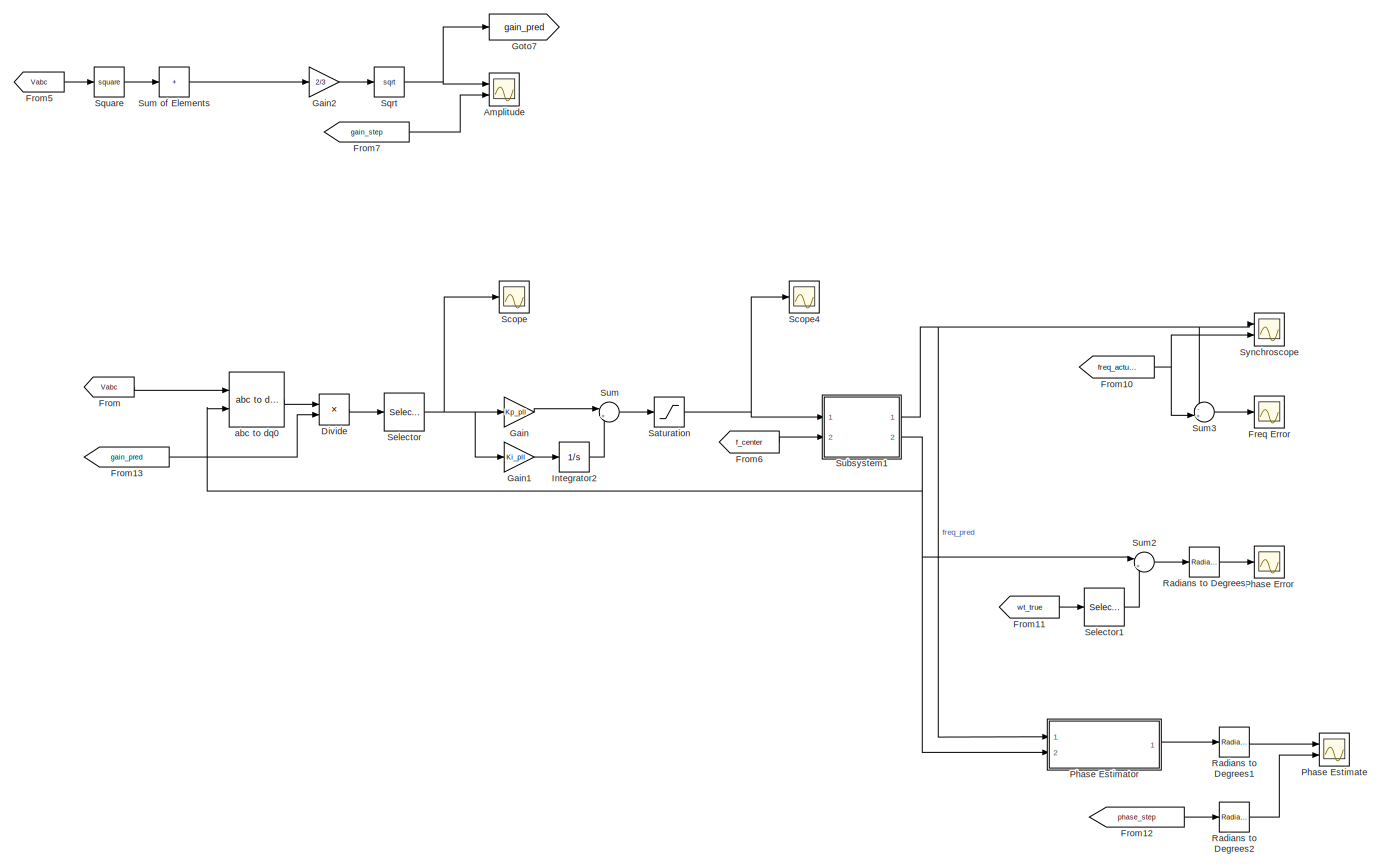
[diagram: root canvas - part 1/2, right side, full height]
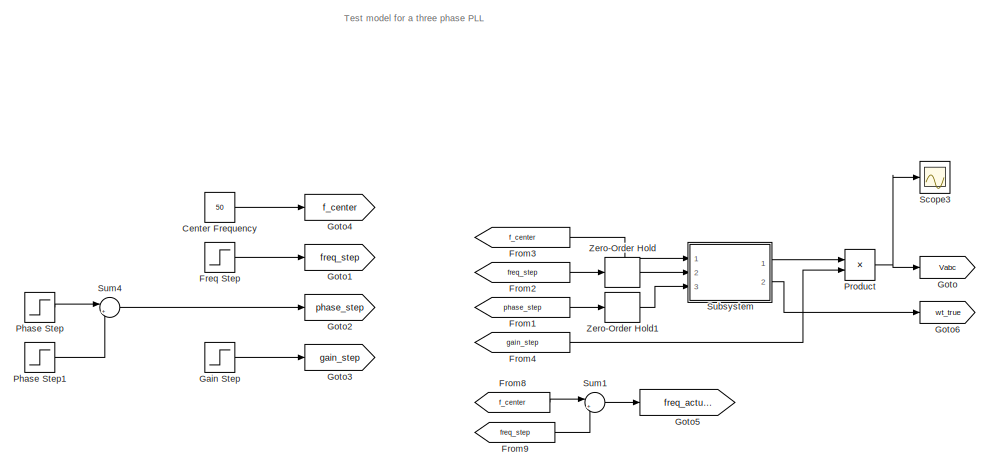
[diagram: root canvas - part 2/2, middle left region]
MODEL slx_16de84b69c4b
KIND model
CONFIG AbsTol = auto
CONFIG EnableMultiTasking = off
CONFIG FixedStep = auto
CONFIG MaxStep = auto
CONFIG MinStep = auto
CONFIG RelTol = 1e-3
CONFIG SampleTimeConstraint = Unconstrained
CONFIG SolverName = VariableStepAuto
CONFIG StartTime = 0.0
CONFIG StopTime = 5
BLOCK [Scope] Amplitude
  Floating = off
  NumInputPorts = 2
  Ports = [2]
  ScopeSpecificationString = Simulink.scopes.TimeScopeBlockCfg('CurrentConfiguration', extmgr.ConfigurationSet(extmgr.Configuration('Core','General UI',true),extmgr.Configuration('Core','Source UI',true),extmgr.Configuration('Sources','WiredSimulink',true,'DataLoggingVariableName','ScopeData5'),extmgr.Configuration('Visuals','Time Domain',true,'SerializedDisplays',{struct('MinYLimReal','-42.42641','MaxYLimReal','381.83766','Y...<+1456ch>
BLOCK [Constant] Center Frequency
  Value = 50
BLOCK [Product] Divide
  Inputs = */
  NameLocation = top
  Ports = [2, 1]
BLOCK [Scope] Freq Error
  Floating = off
  NumInputPorts = 1
  Ports = [1]
  ScopeSpecificationString = Simulink.scopes.TimeScopeBlockCfg('CurrentConfiguration', extmgr.ConfigurationSet(extmgr.Configuration('Core','General UI',true),extmgr.Configuration('Core','Source UI',true),extmgr.Configuration('Sources','WiredSimulink',true,'DataLoggingVariableName','ScopeData6'),extmgr.Configuration('Visuals','Time Domain',true,'SerializedDisplays',{struct('MinYLimReal','-8.18375','MaxYLimReal','3.65372','YLab...<+1721ch>
BLOCK [Step] Freq Step
  After = -2
  SampleTime = 0
BLOCK [From] From
  GotoTag = Vabc
BLOCK [From] From1
  GotoTag = phase_step
BLOCK [From] From10
  GotoTag = freq_actual
BLOCK [From] From11
  GotoTag = wt_true
BLOCK [From] From12
  GotoTag = phase_step
BLOCK [From] From13
  GotoTag = gain_pred
BLOCK [From] From2
  GotoTag = freq_step
BLOCK [From] From3
  GotoTag = f_center
BLOCK [From] From4
  GotoTag = gain_step
BLOCK [From] From5
  GotoTag = Vabc
BLOCK [From] From6
  GotoTag = f_center
BLOCK [From] From7
  GotoTag = gain_step
BLOCK [From] From8
  GotoTag = f_center
BLOCK [From] From9
  GotoTag = freq_step
BLOCK [Gain] Gain
  Gain = Kp_pll
BLOCK [Step] Gain Step
  After = 400*sqrt(2)*0.2
  Before = 400*sqrt(2)
  SampleTime = 1/10000
  Time = 3
BLOCK [Gain] Gain1
  Gain = Ki_pll
BLOCK [Gain] Gain2
  Gain = 2/3
BLOCK [Goto] Goto
  GotoTag = Vabc
BLOCK [Goto] Goto1
  GotoTag = freq_step
BLOCK [Goto] Goto2
  GotoTag = phase_step
BLOCK [Goto] Goto3
  GotoTag = gain_step
BLOCK [Goto] Goto4
  GotoTag = f_center
BLOCK [Goto] Goto5
  GotoTag = freq_actual
BLOCK [Goto] Goto6
  GotoTag = wt_true
BLOCK [Goto] Goto7
  GotoTag = gain_pred
BLOCK [Integrator] Integrator2
  LimitOutput = on
  LowerSaturationLimit = -2*pi*10
  Ports = [1, 1]
  UpperSaturationLimit = 2*pi*10
BLOCK [Scope] Phase Error
  Floating = off
  NumInputPorts = 1
  Ports = [1]
  ScopeSpecificationString = Simulink.scopes.TimeScopeBlockCfg('CurrentConfiguration', extmgr.ConfigurationSet(extmgr.Configuration('Core','General UI',true),extmgr.Configuration('Core','Source UI',true),extmgr.Configuration('Sources','WiredSimulink',true,'DataLoggingVariableName','ScopeData2'),extmgr.Configuration('Visuals','Time Domain',true,'SerializedDisplays',{struct('MinYLimReal','-20.00000','MaxYLimReal','30.00000','YL...<+1762ch>
BLOCK [Scope] Phase Estimate
  Floating = off
  NumInputPorts = 2
  Ports = [2]
  ScopeSpecificationString = Simulink.scopes.TimeScopeBlockCfg('CurrentConfiguration', extmgr.ConfigurationSet(extmgr.Configuration('Core','General UI',true),extmgr.Configuration('Core','Source UI',true),extmgr.Configuration('Sources','WiredSimulink',true,'DataLoggingVariableName','ScopeData1'),extmgr.Configuration('Visuals','Time Domain',true,'SerializedDisplays',{struct('MinYLimReal','-224.57527','MaxYLimReal','224.7466','Y...<+1481ch>
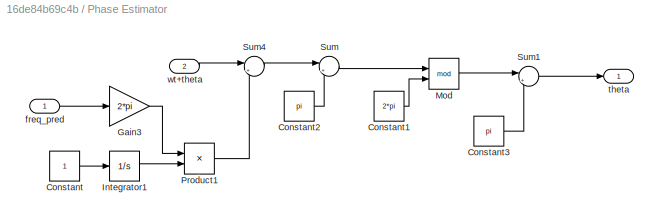
BLOCK [SubSystem] Phase Estimator
  Ports = [2, 1]
  RequestExecContextInheritance = off
BLOCK [Constant] Phase Estimator/Constant
BLOCK [Constant] Phase Estimator/Constant1
  Value = 2*pi
BLOCK [Constant] Phase Estimator/Constant2
  Value = pi
BLOCK [Constant] Phase Estimator/Constant3
  Value = pi
BLOCK [Gain] Phase Estimator/Gain3
  Gain = 2*pi
BLOCK [Integrator] Phase Estimator/Integrator1
  Ports = [1, 1]
BLOCK [Math] Phase Estimator/Mod
  Operator = mod
  Ports = [2, 1]
BLOCK [Product] Phase Estimator/Product1
  Ports = [2, 1]
BLOCK [Sum] Phase Estimator/Sum
  Inputs = |++
  Ports = [2, 1]
BLOCK [Sum] Phase Estimator/Sum1
  Inputs = |+-
  Ports = [2, 1]
BLOCK [Sum] Phase Estimator/Sum4
  Inputs = |+-
  Ports = [2, 1]
BLOCK [Inport] Phase Estimator/freq_pred
BLOCK [Outport] Phase Estimator/theta
BLOCK [Inport] Phase Estimator/wt+theta
  Port = 2
BLOCK [Step] Phase Step
  After = 15 * pi/180
  SampleTime = 0
  Time = 2
BLOCK [Step] Phase Step1
  After = -25 * pi/180
  SampleTime = 0
  Time = 4
BLOCK [Product] Product
  Ports = [2, 1]
BLOCK [Reference] Radians to Degrees  REF=simulink_extras/Transformations/Radians
to Degrees
  Ports = [1, 1]
  SourceBlock = simulink_extras/Transformations/Radians\nto Degrees
  SourceProductBaseCode = SL
  SourceType = RadiansToDegrees
BLOCK [Reference] Radians to Degrees1  REF=simulink_extras/Transformations/Radians
to Degrees
  Ports = [1, 1]
  SourceBlock = simulink_extras/Transformations/Radians\nto Degrees
  SourceProductBaseCode = SL
  SourceType = RadiansToDegrees
BLOCK [Reference] Radians to Degrees2  REF=simulink_extras/Transformations/Radians
to Degrees
  Ports = [1, 1]
  SourceBlock = simulink_extras/Transformations/Radians\nto Degrees
  SourceProductBaseCode = SL
  SourceType = RadiansToDegrees
BLOCK [Saturate] Saturation
  LowerLimit = -2*pi*5
  UpperLimit = 2*pi*5
BLOCK [Scope] Scope
  Floating = off
  NumInputPorts = 1
  Ports = [1]
  ScopeSpecificationString = Simulink.scopes.TimeScopeBlockCfg('CurrentConfiguration', extmgr.ConfigurationSet(extmgr.Configuration('Core','General UI',true),extmgr.Configuration('Core','Source UI',true),extmgr.Configuration('Sources','WiredSimulink',true),extmgr.Configuration('Visuals','Time Domain',true,'SerializedDisplays',{struct('MinYLimReal','-0.5078','MaxYLimReal','0.344','YLabelReal','','MinYLimMag','0.00000','MaxYLim...<+1391ch>
BLOCK [Scope] Scope3
  Floating = off
  NumInputPorts = 1
  Ports = [1]
  ScopeSpecificationString = Simulink.scopes.TimeScopeBlockCfg('CurrentConfiguration', extmgr.ConfigurationSet(extmgr.Configuration('Core','General UI',true),extmgr.Configuration('Core','Source UI',true),extmgr.Configuration('Sources','WiredSimulink',true,'DataLoggingVariableName','ScopeData3'),extmgr.Configuration('Visuals','Time Domain',true,'SerializedDisplays',{struct('MinYLimReal','-397.22471','MaxYLimReal','408.88214','...<+1477ch>
BLOCK [Scope] Scope4
  Floating = off
  NumInputPorts = 1
  Ports = [1]
  ScopeSpecificationString = Simulink.scopes.TimeScopeBlockCfg('CurrentConfiguration', extmgr.ConfigurationSet(extmgr.Configuration('Core','General UI',true),extmgr.Configuration('Core','Source UI',true),extmgr.Configuration('Sources','WiredSimulink',true,'DataLoggingVariableName','ScopeData4'),extmgr.Configuration('Visuals','Time Domain',true,'SerializedDisplays',{struct('MinYLimReal','-39.63487','MaxYLimReal','74.21704','YL...<+1419ch>
BLOCK [Selector] Selector
  IndexOptions = Index vector (dialog)
  Indices = [2]
  InputPortWidth = 3
  OutputSizes = 1
  Ports = [1, 1]
BLOCK [Selector] Selector1
  IndexOptions = Index vector (dialog)
  Indices = [1]
  InputPortWidth = 3
  OutputSizes = 1
  Ports = [1, 1]
BLOCK [Sqrt] Sqrt
BLOCK [Math] Square
  Operator = square
  Ports = [1, 1]
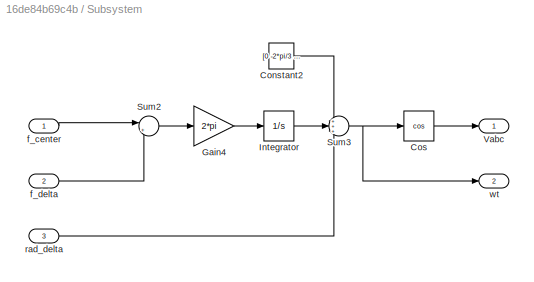
BLOCK [SubSystem] Subsystem
  Ports = [3, 2]
  RequestExecContextInheritance = off
BLOCK [Constant] Subsystem/Constant2
  Value = [0 -2*pi/3 2*pi/3]
BLOCK [Trigonometry] Subsystem/Cos
  Operator = cos
  Ports = [1, 1]
BLOCK [Gain] Subsystem/Gain4
  Gain = 2*pi
BLOCK [Integrator] Subsystem/Integrator
  Ports = [1, 1]
BLOCK [Sum] Subsystem/Sum2
  Inputs = |++
  Ports = [2, 1]
BLOCK [Sum] Subsystem/Sum3
  Inputs = +++
  Ports = [3, 1]
BLOCK [Outport] Subsystem/Vabc
BLOCK [Inport] Subsystem/f_center
BLOCK [Inport] Subsystem/f_delta
  Port = 2
BLOCK [Inport] Subsystem/rad_delta
  Port = 3
BLOCK [Outport] Subsystem/wt
  Port = 2
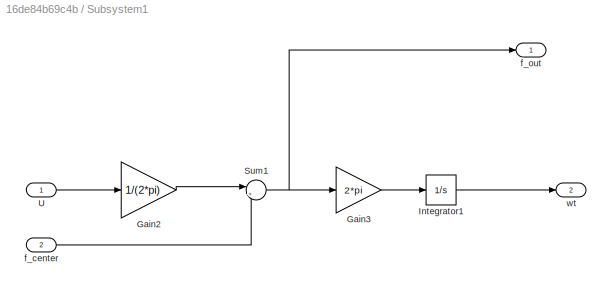
BLOCK [SubSystem] Subsystem1
  Ports = [2, 2]
  RequestExecContextInheritance = off
BLOCK [Gain] Subsystem1/Gain2
  Gain = 1/(2*pi)
BLOCK [Gain] Subsystem1/Gain3
  Gain = 2*pi
BLOCK [Integrator] Subsystem1/Integrator1
  Ports = [1, 1]
BLOCK [Sum] Subsystem1/Sum1
  Inputs = |++
  Ports = [2, 1]
BLOCK [Inport] Subsystem1/U
BLOCK [Inport] Subsystem1/f_center
  Port = 2
BLOCK [Outport] Subsystem1/f_out
BLOCK [Outport] Subsystem1/wt
  Port = 2
BLOCK [Sum] Sum
  Inputs = |++
  Ports = [2, 1]
BLOCK [Sum] Sum of Elements
  IconShape = rectangular
  Inputs = +
  Ports = [1, 1]
BLOCK [Sum] Sum1
  Inputs = |++
  Ports = [2, 1]
BLOCK [Sum] Sum2
  Inputs = |+-
  Ports = [2, 1]
BLOCK [Sum] Sum3
  Inputs = -+|
  Ports = [2, 1]
BLOCK [Sum] Sum4
  Inputs = |++
  Ports = [2, 1]
BLOCK [Scope] Synchroscope
  Floating = off
  NumInputPorts = 2
  Ports = [2]
  ScopeSpecificationString = Simulink.scopes.TimeScopeBlockCfg('CurrentConfiguration', extmgr.ConfigurationSet(extmgr.Configuration('Core','General UI',true),extmgr.Configuration('Core','Source UI',true),extmgr.Configuration('Sources','WiredSimulink',true,'DataLoggingVariableName','ScopeData1'),extmgr.Configuration('Visuals','Time Domain',true,'SerializedDisplays',{struct('MinYLimReal','43.75','MaxYLimReal','56.25','YLabelRea...<+1438ch>
BLOCK [ZeroOrderHold] Zero-Order Hold
  SampleTime = Tcs
BLOCK [ZeroOrderHold] Zero-Order Hold1
  SampleTime = Tcs
BLOCK [Reference] abc to dq0  REF=spsabctodq0Lib/abc to dq0
  Ports = [2, 1]
  SourceBlock = spsabctodq0Lib/abc to dq0
  SourceProductBaseCode = PS
  SourceType = abc to dq0 Transformation
ANNOTATION (root): Test model for a three phase PLL
LINE Center Frequency:1 -> Goto4:1
LINE Divide:1 -> Selector:1
LINE Freq Step:1 -> Goto1:1
NET From10:1 -> Sum3:2, Synchroscope:2
LINE From11:1 -> Selector1:1
LINE From12:1 -> Radians to Degrees2:1
LINE From13:1 -> Divide:2
LINE From1:1 -> Zero-Order Hold1:1
LINE From2:1 -> Zero-Order Hold:1
LINE From3:1 -> Subsystem:1
LINE From4:1 -> Product:2
LINE From5:1 -> Square:1
LINE From6:1 -> Subsystem1:2
LINE From7:1 -> Amplitude:2
LINE From8:1 -> Sum1:1
LINE From9:1 -> Sum1:2
LINE From:1 -> abc to dq0:1
LINE Gain Step:1 -> Goto3:1
LINE Gain1:1 -> Integrator2:1
LINE Gain2:1 -> Sqrt:1
LINE Gain:1 -> Sum:1
LINE Integrator2:1 -> Sum:2
LINE Phase Estimator/Constant1:1 -> Phase Estimator/Mod:2
LINE Phase Estimator/Constant2:1 -> Phase Estimator/Sum:2
LINE Phase Estimator/Constant3:1 -> Phase Estimator/Sum1:2
LINE Phase Estimator/Constant:1 -> Phase Estimator/Integrator1:1
LINE Phase Estimator/Gain3:1 -> Phase Estimator/Product1:1
LINE Phase Estimator/Integrator1:1 -> Phase Estimator/Product1:2
LINE Phase Estimator/Mod:1 -> Phase Estimator/Sum1:1
LINE Phase Estimator/Product1:1 -> Phase Estimator/Sum4:2
LINE Phase Estimator/Sum1:1 -> Phase Estimator/theta:1
LINE Phase Estimator/Sum4:1 -> Phase Estimator/Sum:1
LINE Phase Estimator/Sum:1 -> Phase Estimator/Mod:1
LINE Phase Estimator/freq_pred:1 -> Phase Estimator/Gain3:1
LINE Phase Estimator/wt+theta:1 -> Phase Estimator/Sum4:1
LINE Phase Estimator:1 -> Radians to Degrees1:1
LINE Phase Step1:1 -> Sum4:2
LINE Phase Step:1 -> Sum4:1
NET Product:1 -> Goto:1, Scope3:1
LINE Radians to Degrees1:1 -> Phase Estimate:1
LINE Radians to Degrees2:1 -> Phase Estimate:2
LINE Radians to Degrees:1 -> Phase Error:1
NET Saturation:1 -> Scope4:1, Subsystem1:1
LINE Selector1:1 -> Sum2:2
NET Selector:1 -> Gain1:1, Gain:1, Scope:1
NET Sqrt:1 -> Amplitude:1, Goto7:1
LINE Square:1 -> Sum of Elements:1
LINE Subsystem/Constant2:1 -> Subsystem/Sum3:1
LINE Subsystem/Cos:1 -> Subsystem/Vabc:1
LINE Subsystem/Gain4:1 -> Subsystem/Integrator:1
LINE Subsystem/Integrator:1 -> Subsystem/Sum3:2
LINE Subsystem/Sum2:1 -> Subsystem/Gain4:1
NET Subsystem/Sum3:1 -> Subsystem/Cos:1, Subsystem/wt:1
LINE Subsystem/f_center:1 -> Subsystem/Sum2:1
LINE Subsystem/f_delta:1 -> Subsystem/Sum2:2
LINE Subsystem/rad_delta:1 -> Subsystem/Sum3:3
LINE Subsystem1/Gain2:1 -> Subsystem1/Sum1:1
LINE Subsystem1/Gain3:1 -> Subsystem1/Integrator1:1
LINE Subsystem1/Integrator1:1 -> Subsystem1/wt:1
NET Subsystem1/Sum1:1 -> Subsystem1/Gain3:1, Subsystem1/f_out:1
LINE Subsystem1/U:1 -> Subsystem1/Gain2:1
LINE Subsystem1/f_center:1 -> Subsystem1/Sum1:2
NET Subsystem1:1 -> Phase Estimator:1, Sum3:1, Synchroscope:1
NET Subsystem1:2 -> Phase Estimator:2, Sum2:1, abc to dq0:2
LINE Subsystem:1 -> Product:1
LINE Subsystem:2 -> Goto6:1
LINE Sum of Elements:1 -> Gain2:1
LINE Sum1:1 -> Goto5:1
LINE Sum2:1 -> Radians to Degrees:1
LINE Sum3:1 -> Freq Error:1
LINE Sum4:1 -> Goto2:1
LINE Sum:1 -> Saturation:1
LINE Zero-Order Hold1:1 -> Subsystem:3
LINE Zero-Order Hold:1 -> Subsystem:2
LINE abc to dq0:1 -> Divide:1
note: NET lines group one-source signal fan-out (src -> all destinations, sorted); 1:1 wires keep LINE
